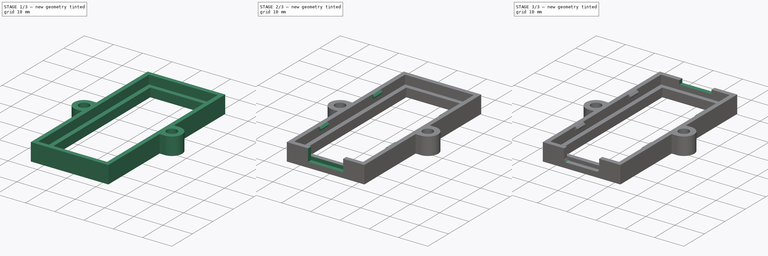
[diagram: build sequence overview — one tinted view per stage of 3, left to right]
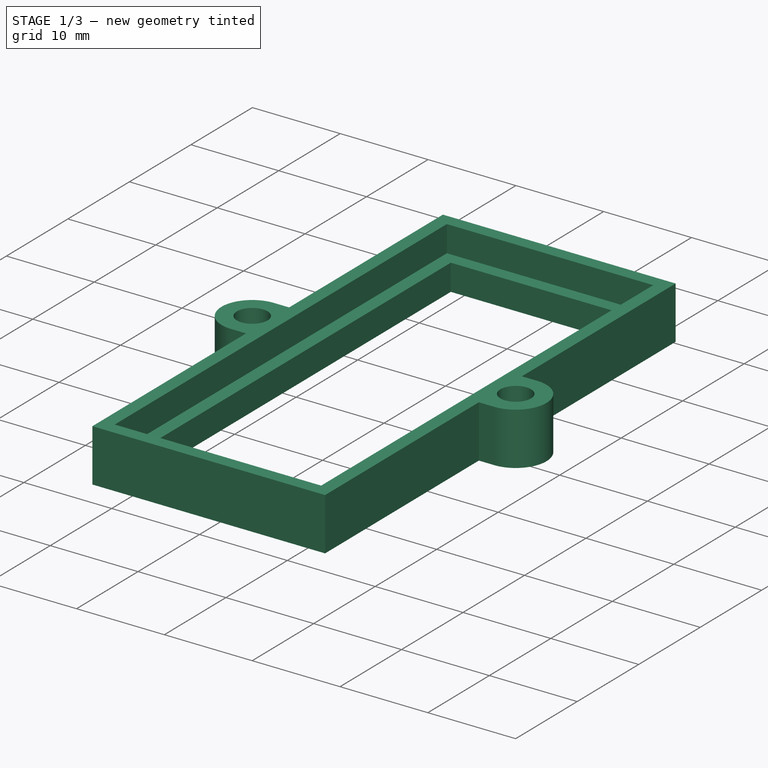
[diagram: stage 1 of 3 — iso view after this stage's code; geometry added in this stage tinted green]
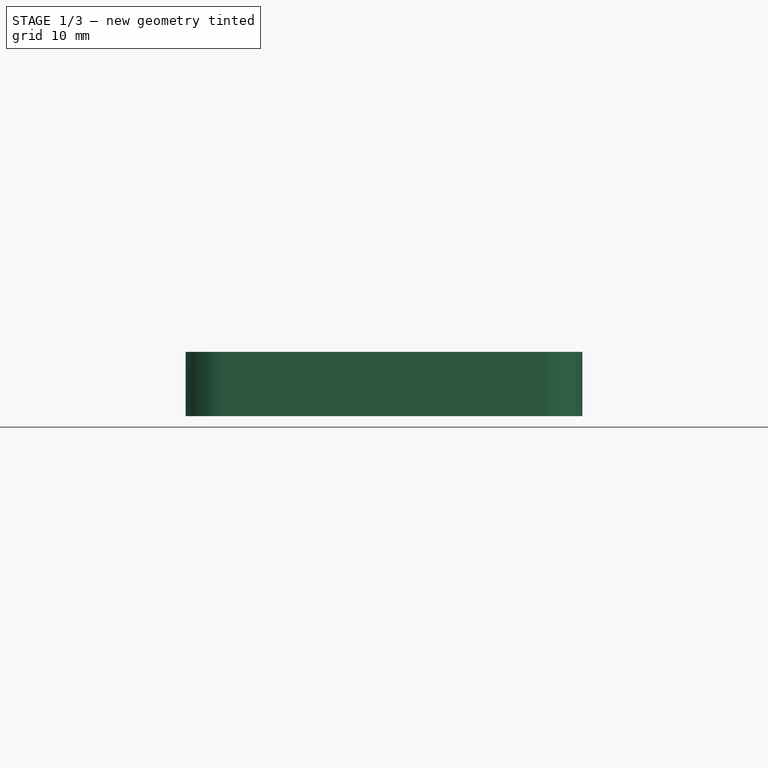
[diagram: stage 1 of 3 — front view after this stage's code; geometry added in this stage tinted green]
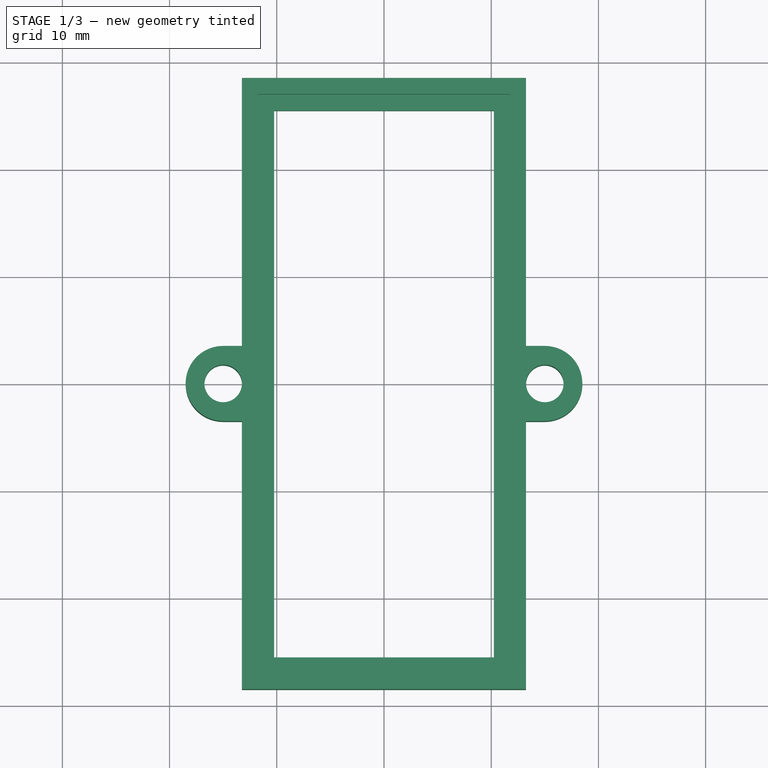
[diagram: stage 1 of 3 — top view after this stage's code; geometry added in this stage tinted green]
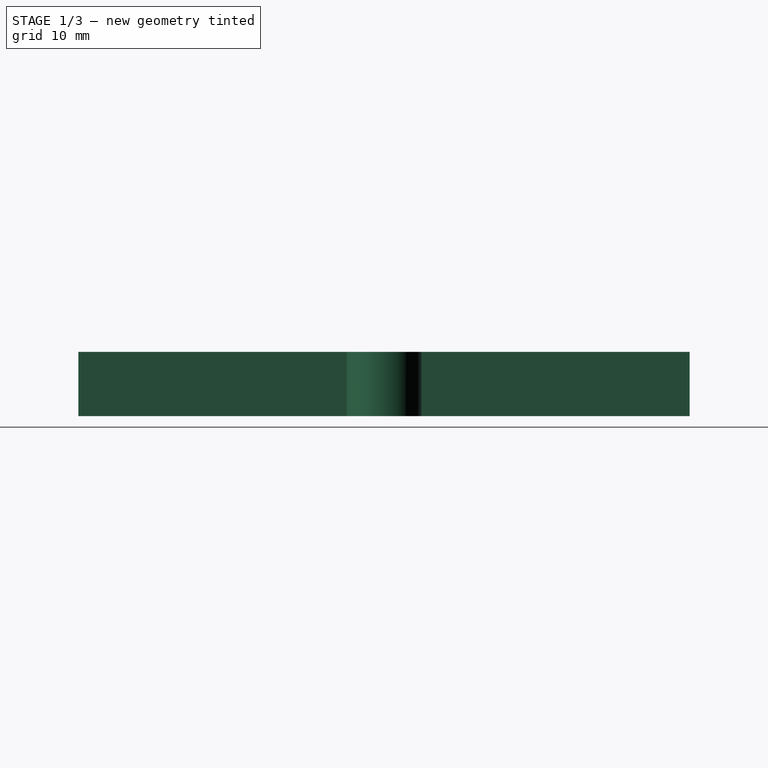
[diagram: stage 1 of 3 — right view after this stage's code; geometry added in this stage tinted green]
FCSTD DOCUMENT  (FreeCAD 0.17R13541 (Git))
Label: Bluepill_holder
License: All rights reserved
LicenseURL: http://en.wikipedia.org/wiki/All_rights_reserved
objects: Sketcher::SketchObject×5, PartDesign::Pocket×3, PartDesign::Pad×2, PartDesign::Chamfer×1, PartDesign::Fillet×1, PartDesign::Body×1
note: 18 computed .brp shape members not serialized (recipe doc carries the construction recipe); baked Part::Feature solids carry a one-line shape summary decoded from their .brp

FEATURE [Sketcher::SketchObject] Sketch
  MapMode = 5
  Support = -> [XY_Plane]
  sketch-geometry (18):
    g0: LineSegment StartX=-10.25 StartY=25.5 StartZ=0 EndX=10.25 EndY=25.5 EndZ=0
    g1: LineSegment StartX=10.25 StartY=25.5 StartZ=0 EndX=10.25 EndY=-25.5 EndZ=0
    g2: LineSegment StartX=10.25 StartY=-25.5 StartZ=0 EndX=-10.25 EndY=-25.5 EndZ=0
    g3: LineSegment StartX=-10.25 StartY=-25.5 StartZ=0 EndX=-10.25 EndY=25.5 EndZ=0
    g4: LineSegment StartX=-13.25 StartY=28.5 StartZ=0 EndX=13.25 EndY=28.5 EndZ=0
    g5: LineSegment StartX=13.25 StartY=28.5 StartZ=0 EndX=13.25 EndY=3.5 EndZ=0
    g6: LineSegment StartX=13.25 StartY=-28.5 StartZ=0 EndX=-13.25 EndY=-28.5 EndZ=0
    g7: LineSegment StartX=-13.25 StartY=-28.5 StartZ=0 EndX=-13.25 EndY=-3.5 EndZ=0
    g8: Circle CenterX=-15 CenterY=0 CenterZ=0 NormalX=0 NormalY=0 NormalZ=1 AngleXU=0 Radius=1.75
    g9: Circle CenterX=15 CenterY=0 CenterZ=0 NormalX=0 NormalY=0 NormalZ=1 AngleXU=0 Radius=1.75
    g10: LineSegment StartX=-13.25 StartY=3.5 StartZ=0 EndX=-15 EndY=3.5 EndZ=0
    g11: LineSegment StartX=-15 StartY=-3.5 StartZ=0 EndX=-13.25 EndY=-3.5 EndZ=0
    g12: LineSegment StartX=13.25 StartY=-3.5 StartZ=0 EndX=15 EndY=-3.5 EndZ=0
    g13: LineSegment StartX=15 StartY=3.5 StartZ=0 EndX=13.25 EndY=3.5 EndZ=0
    g14: ArcOfCircle CenterX=-15 CenterY=0 CenterZ=0 NormalX=0 NormalY=0 NormalZ=1 AngleXU=0 Radius=3.5 StartAngle=1.5708 EndAngle=4.71239
    g15: ArcOfCircle CenterX=15 CenterY=0 CenterZ=0 NormalX=0 NormalY=0 NormalZ=1 AngleXU=0 Radius=3.5 StartAngle=4.71239 EndAngle=7.85398
    g16: LineSegment StartX=-13.25 StartY=3.5 StartZ=0 EndX=-13.25 EndY=28.5 EndZ=0
    g17: LineSegment StartX=13.25 StartY=-3.5 StartZ=0 EndX=13.25 EndY=-28.5 EndZ=0
  constraints (48):
    c: Coincident(g0,g1)
    c: Coincident(g1,g2)
    c: Coincident(g2,g3)
    c: Coincident(g3,g0)
    c: Horizontal(g0)
    c: Horizontal(g2)
    c: Vertical(g1)
    c: Vertical(g3)
    c: Coincident(g4,g5)
    c: Coincident(g17,g6)
    c: Coincident(g6,g7)
    c: Coincident(g16,g4)
    c: Horizontal(g4)
    c: Horizontal(g6)
    c: Vertical(g5)
    c: Vertical(g7)
    c: PointOnObject(g8,g-1)
    c: PointOnObject(g9,g-1)
    c: Symmetric(g0,g2,g-1)
    c: Symmetric(g4,g6,g-1)
    c: Symmetric(g6,g17,g-2)
    c: Symmetric(g2,g1,g-2)
    c: Symmetric(g8,g9,g-2)
    c: DistanceY(g3,g3) = 51
    c: DistanceX(g2,g2) = 20.5
    c: DistanceY(g7,g16) = 57
    c: DistanceX(g4,g4) = 26.5
    c: DistanceX(g8,g9) = 30
    c: Horizontal(g10)
    c: Horizontal(g11)
    c: Horizontal(g12)
    c: Horizontal(g13)
    c: Coincident(g14,g8)
    c: Coincident(g15,g9)
    c: Equal(g8,g9)
    c: Equal(g14,g15)
    c: Radius(g8) = 1.75
    c: Tangent(g14,g11) = -1.5708
    c: Tangent(g14,g10) = -1.5708
    c: Tangent(g15,g13) = -1.5708
    c: Tangent(g15,g12) = -1.5708
    c: Radius(g14) = 3.5
    c: Coincident(g7,g11)
    c: Coincident(g16,g10)
    c: Tangent(g7,g16)
    c: Coincident(g5,g13)
    c: Coincident(g17,g12)
    c: Tangent(g5,g17)
FEATURE [PartDesign::Pad] Pad
  Length = 6
  Length2 = 100
  Profile = -> Sketch
  Type = 0
FEATURE [Sketcher::SketchObject] Sketch001
  MapMode = 5
  Placement = pos=(0,0,6) rot=(0,0,1;0rad)
  Support = -> [Pad]
  sketch-geometry (4):
    g0: LineSegment StartX=-11.75 StartY=27 StartZ=0 EndX=11.75 EndY=27 EndZ=0
    g1: LineSegment StartX=11.75 StartY=27 StartZ=0 EndX=11.75 EndY=-27 EndZ=0
    g2: LineSegment StartX=11.75 StartY=-27 StartZ=0 EndX=-11.75 EndY=-27 EndZ=0
    g3: LineSegment StartX=-11.75 StartY=-27 StartZ=0 EndX=-11.75 EndY=27 EndZ=0
  constraints (12):
    c: Coincident(g0,g1)
    c: Coincident(g1,g2)
    c: Coincident(g2,g3)
    c: Coincident(g3,g0)
    c: Horizontal(g0)
    c: Horizontal(g2)
    c: Vertical(g1)
    c: Vertical(g3)
    c: Symmetric(g0,g2,g-1)
    c: Symmetric(g2,g1,g-2)
    c: DistanceX(g2,g2) = 23.5
    c: DistanceY(g1,g1) = 54
FEATURE [PartDesign::Pocket] Pocket
  BaseFeature = -> Pad
  Length = 3
  Length2 = 100
  Profile = -> Sketch001
  Type = 0
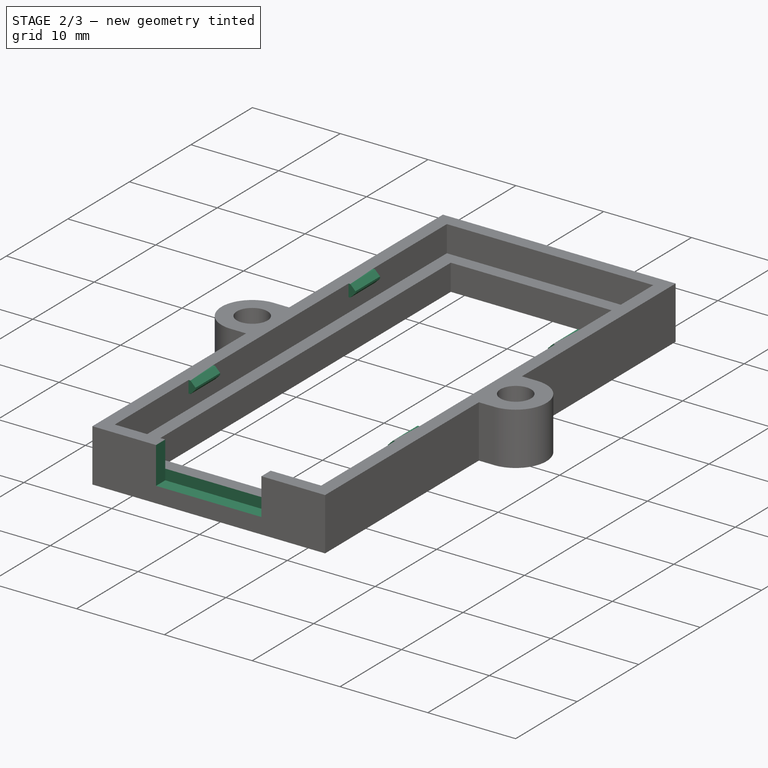
[diagram: stage 2 of 3 — iso view after this stage's code; geometry added in this stage tinted green]
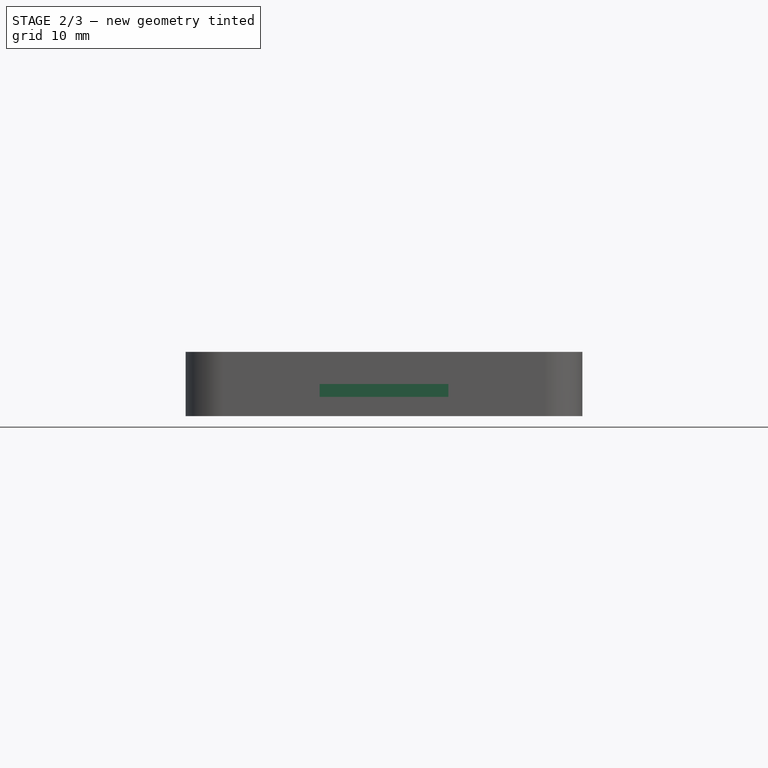
[diagram: stage 2 of 3 — front view after this stage's code; geometry added in this stage tinted green]
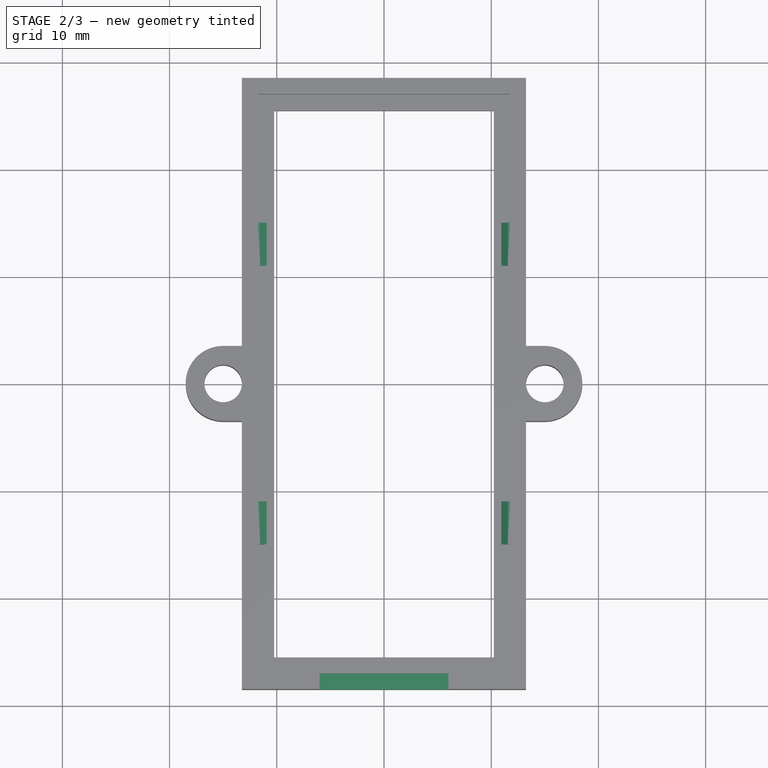
[diagram: stage 2 of 3 — top view after this stage's code; geometry added in this stage tinted green]
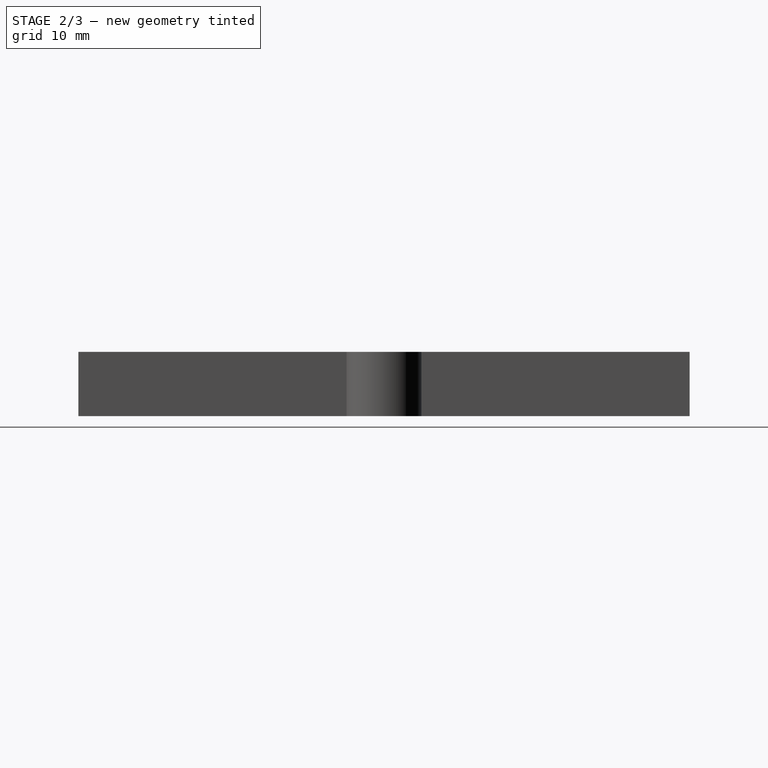
[diagram: stage 2 of 3 — right view after this stage's code; geometry added in this stage tinted green]
FEATURE [Sketcher::SketchObject] Sketch002
  MapMode = 5
  Placement = pos=(0,0,6) rot=(0,0,1;0rad)
  Support = -> [Pocket]
  sketch-geometry (16):
    g0: LineSegment StartX=-11.75 StartY=15 StartZ=0 EndX=-10.95 EndY=15 EndZ=0
    g1: LineSegment StartX=-10.95 StartY=15 StartZ=0 EndX=-10.95 EndY=11 EndZ=0
    g2: LineSegment StartX=-10.95 StartY=11 StartZ=0 EndX=-11.75 EndY=11 EndZ=0
    g3: LineSegment StartX=-11.75 StartY=11 StartZ=0 EndX=-11.75 EndY=15 EndZ=0
    g4: LineSegment StartX=-11.75 StartY=-11 StartZ=0 EndX=-10.95 EndY=-11 EndZ=0
    g5: LineSegment StartX=-10.95 StartY=-11 StartZ=0 EndX=-10.95 EndY=-15 EndZ=0
    g6: LineSegment StartX=-10.95 StartY=-15 StartZ=0 EndX=-11.75 EndY=-15 EndZ=0
    g7: LineSegment StartX=-11.75 StartY=-15 StartZ=0 EndX=-11.75 EndY=-11 EndZ=0
    g8: LineSegment StartX=11.75 StartY=-11 StartZ=0 EndX=10.95 EndY=-11 EndZ=0
    g9: LineSegment StartX=10.95 StartY=-11 StartZ=0 EndX=10.95 EndY=-15 EndZ=0
    g10: LineSegment StartX=10.95 StartY=-15 StartZ=0 EndX=11.75 EndY=-15 EndZ=0
    g11: LineSegment StartX=11.75 StartY=-15 StartZ=0 EndX=11.75 EndY=-11 EndZ=0
    g12: LineSegment StartX=11.75 StartY=15 StartZ=0 EndX=10.95 EndY=15 EndZ=0
    g13: LineSegment StartX=10.95 StartY=15 StartZ=0 EndX=10.95 EndY=11 EndZ=0
    g14: LineSegment StartX=10.95 StartY=11 StartZ=0 EndX=11.75 EndY=11 EndZ=0
    g15: LineSegment StartX=11.75 StartY=11 StartZ=0 EndX=11.75 EndY=15 EndZ=0
  constraints (48):
    c: Coincident(g0,g1)
    c: Coincident(g1,g2)
    c: Coincident(g2,g3)
    c: Coincident(g3,g0)
    c: Horizontal(g0)
    c: Horizontal(g2)
    c: Vertical(g1)
    c: Vertical(g3)
    c: Coincident(g4,g5)
    c: Coincident(g5,g6)
    c: Coincident(g6,g7)
    c: Coincident(g7,g4)
    c: Horizontal(g4)
    c: Horizontal(g6)
    c: Vertical(g5)
    c: Vertical(g7)
    c: Coincident(g8,g9)
    c: Coincident(g9,g10)
    c: Coincident(g10,g11)
    c: Coincident(g11,g8)
    c: Horizontal(g8)
    c: Horizontal(g10)
    c: Vertical(g9)
    c: Vertical(g11)
    c: Coincident(g12,g13)
    c: Coincident(g13,g14)
    c: Coincident(g14,g15)
    c: Coincident(g15,g12)
    c: Horizontal(g12)
    c: Horizontal(g14)
    c: Vertical(g13)
    c: Vertical(g15)
    c: Equal(g2,g14)
    c: Equal(g14,g6)
    c: Equal(g6,g10)
    c: Equal(g5,g9)
    c: Equal(g9,g1)
    c: Equal(g1,g13)
    c: PointOnObject(g12,g0)
    c: PointOnObject(g4,g3)
    c: PointOnObject(g9,g6)
    c: PointOnObject(g8,g15)
    c: DistanceY(g7,g7) = 4
    c: DistanceX(g4,g4) = 0.8
    c: Symmetric(g0,g6,g-1)
    c: Symmetric(g0,g12,g-2)
    c: DistanceY(g6,g0) = 30
    c: DistanceX(g0,g12) = 23.5
FEATURE [PartDesign::Pad] Pad001
  BaseFeature = -> Pocket
  Length = 1.4
  Length2 = 100
  Profile = -> Sketch002
  Reversed = true
  Type = 0
FEATURE [PartDesign::Chamfer] Chamfer
  Base = -> Pad001 [Edge112,Edge94,Edge117,Edge97,Edge79,Edge101,Edge82,Edge106]
  BaseFeature = -> Pad001
  Size = 0.59
FEATURE [Sketcher::SketchObject] Sketch003
  MapMode = 5
  Placement = pos=(0,0,6) rot=(0,0,1;0rad)
  Support = -> [Chamfer]
  sketch-geometry (4):
    g0: LineSegment StartX=-6 StartY=-27 StartZ=0 EndX=6 EndY=-27 EndZ=0
    g1: LineSegment StartX=6 StartY=-27 StartZ=0 EndX=6 EndY=-29 EndZ=0
    g2: LineSegment StartX=6 StartY=-29 StartZ=0 EndX=-6 EndY=-29 EndZ=0
    g3: LineSegment StartX=-6 StartY=-29 StartZ=0 EndX=-6 EndY=-27 EndZ=0
  constraints (12):
    c: Coincident(g0,g1)
    c: Coincident(g1,g2)
    c: Coincident(g2,g3)
    c: Coincident(g3,g0)
    c: Horizontal(g0)
    c: Horizontal(g2)
    c: Vertical(g1)
    c: Vertical(g3)
    c: Symmetric(g0,g0,g-2)
    c: DistanceX(g2,g2) = 12
    c: DistanceY(g3,g3) = 2
    c: DistanceY(g0) = -27
FEATURE [PartDesign::Pocket] Pocket001
  BaseFeature = -> Chamfer
  Length = 4.2
  Length2 = 100
  Profile = -> Sketch003
  Type = 0
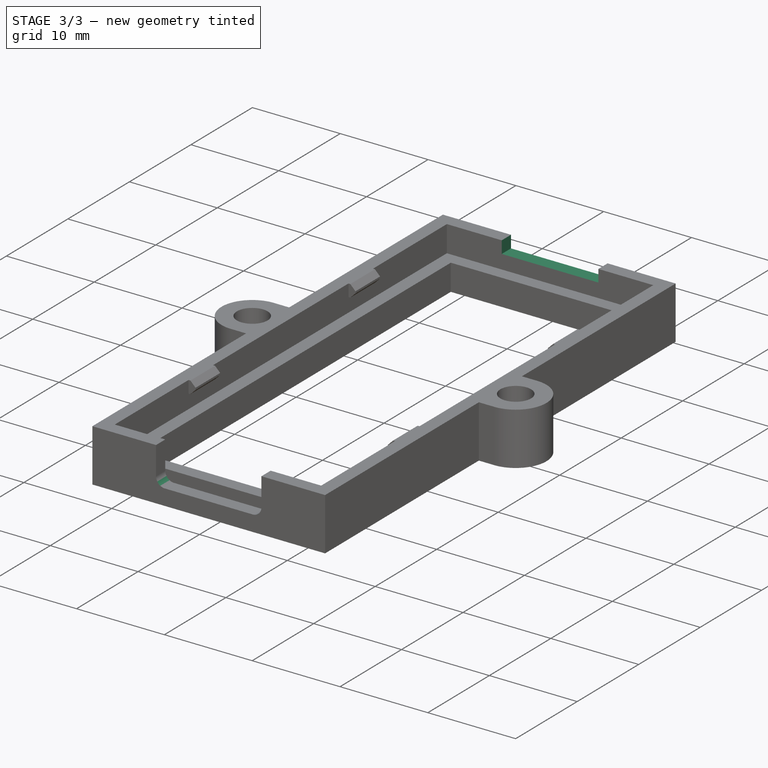
[diagram: stage 3 of 3 — iso view after this stage's code; geometry added in this stage tinted green]
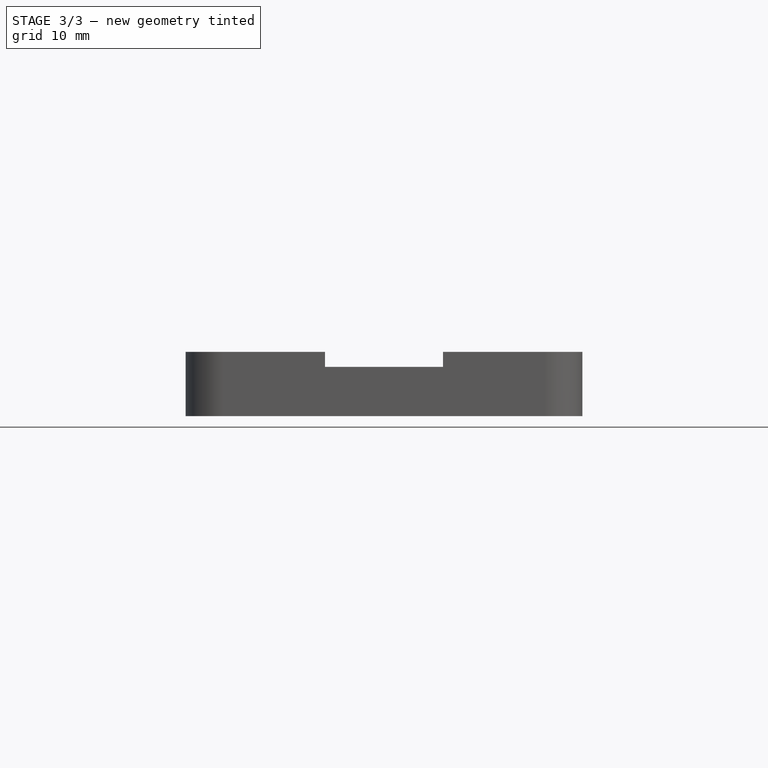
[diagram: stage 3 of 3 — front view after this stage's code; geometry added in this stage tinted green]
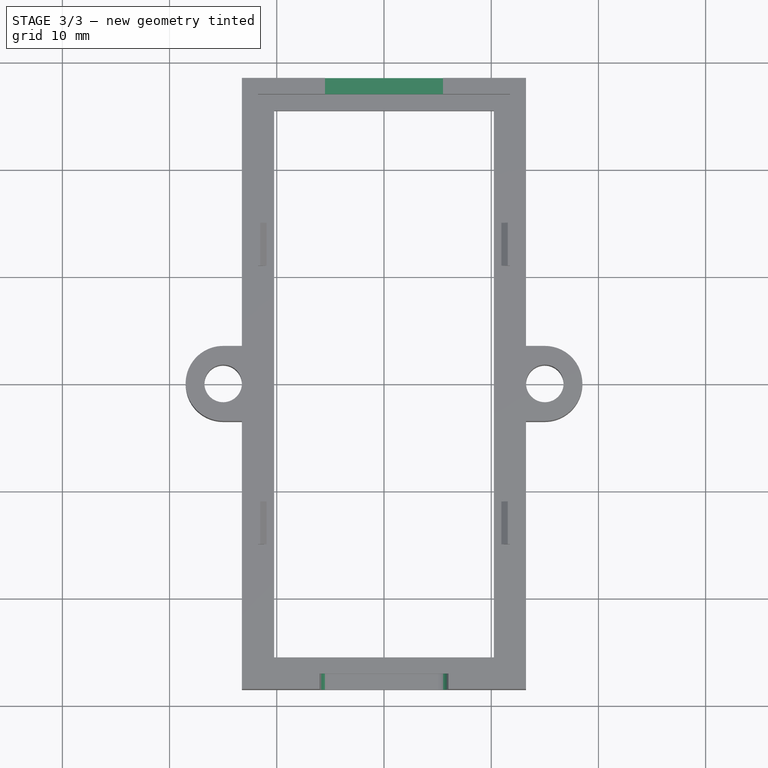
[diagram: stage 3 of 3 — top view after this stage's code; geometry added in this stage tinted green]
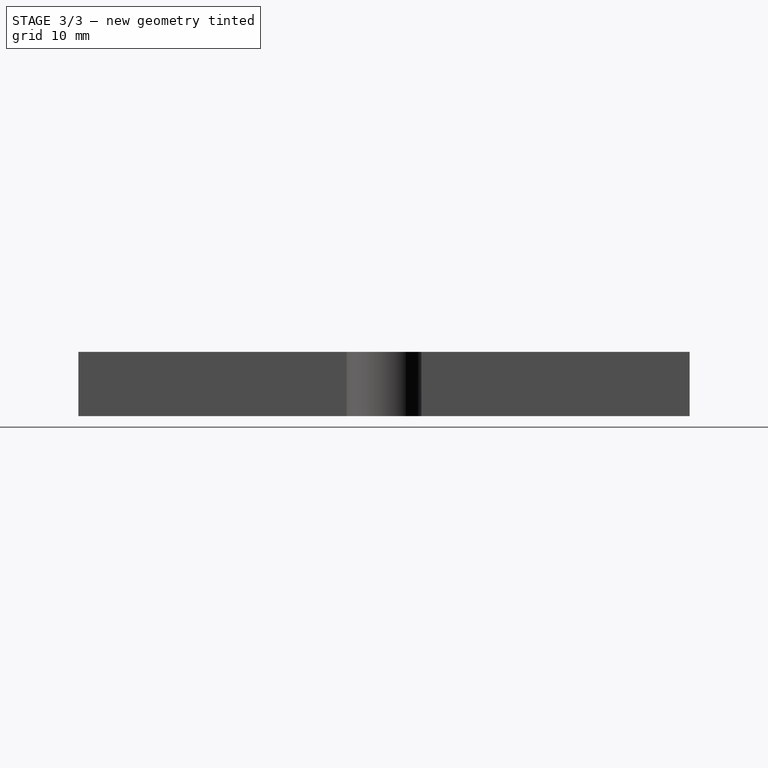
[diagram: stage 3 of 3 — right view after this stage's code; geometry added in this stage tinted green]
FEATURE [Sketcher::SketchObject] Sketch004
  MapMode = 5
  Placement = pos=(0,0,6) rot=(0,0,1;0rad)
  Support = -> [Pocket001]
  sketch-geometry (4):
    g0: LineSegment StartX=-5.5 StartY=29 StartZ=0 EndX=5.5 EndY=29 EndZ=0
    g1: LineSegment StartX=5.5 StartY=29 StartZ=0 EndX=5.5 EndY=27 EndZ=0
    g2: LineSegment StartX=5.5 StartY=27 StartZ=0 EndX=-5.5 EndY=27 EndZ=0
    g3: LineSegment StartX=-5.5 StartY=27 StartZ=0 EndX=-5.5 EndY=29 EndZ=0
  constraints (12):
    c: Coincident(g0,g1)
    c: Coincident(g1,g2)
    c: Coincident(g2,g3)
    c: Coincident(g3,g0)
    c: Horizontal(g0)
    c: Horizontal(g2)
    c: Vertical(g1)
    c: Vertical(g3)
    c: DistanceY(g3,g3) = 2
    c: DistanceX(g0,g0) = 11
    c: DistanceX(g2) = -5.5
    c: DistanceY(g2) = 27
FEATURE [PartDesign::Pocket] Pocket002
  BaseFeature = -> Pocket001
  Length = 1.4
  Length2 = 100
  Profile = -> Sketch004
  Type = 0
FEATURE [PartDesign::Fillet] Fillet
  Base = -> Pocket002 [Edge119,Edge55]
  BaseFeature = -> Pocket002
  Radius = 1
FEATURE [PartDesign::Body] Body
  Group = -> [Sketch,Pad,Sketch001,Pocket,Sketch002,Pad001,Chamfer,Sketch003,Pocket001,Sketch004,Pocket002,Fillet]
  Origin = -> Origin
  Tip = -> Fillet
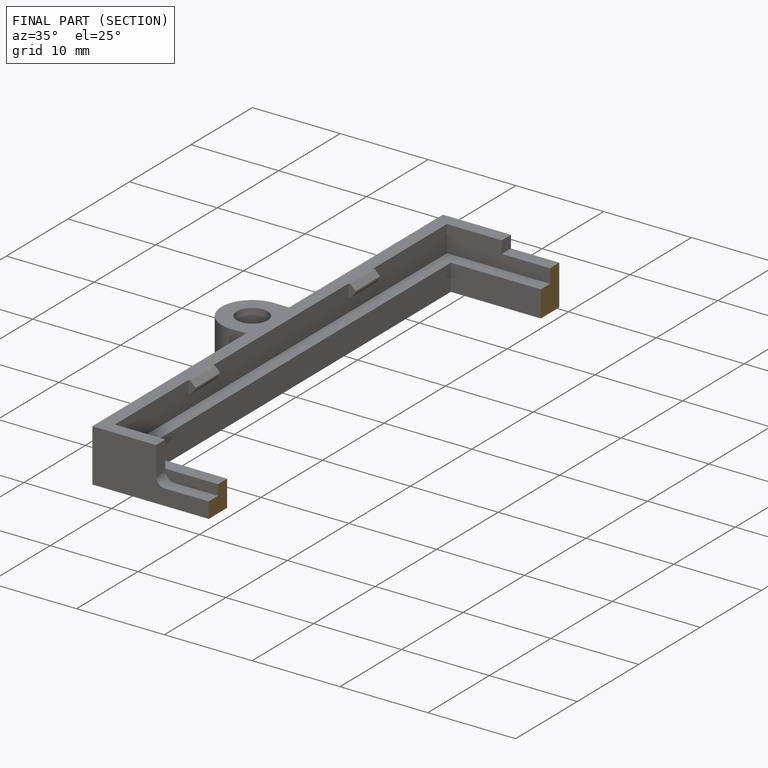
[diagram: finished part — half-section view (interior)]
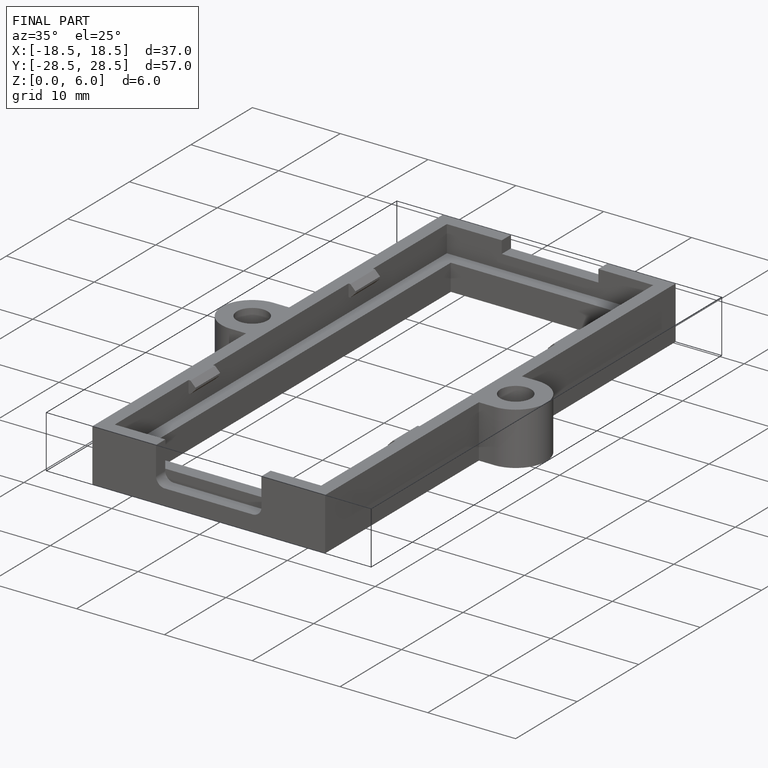
[diagram: finished part — iso view with bounding-box wireframe]
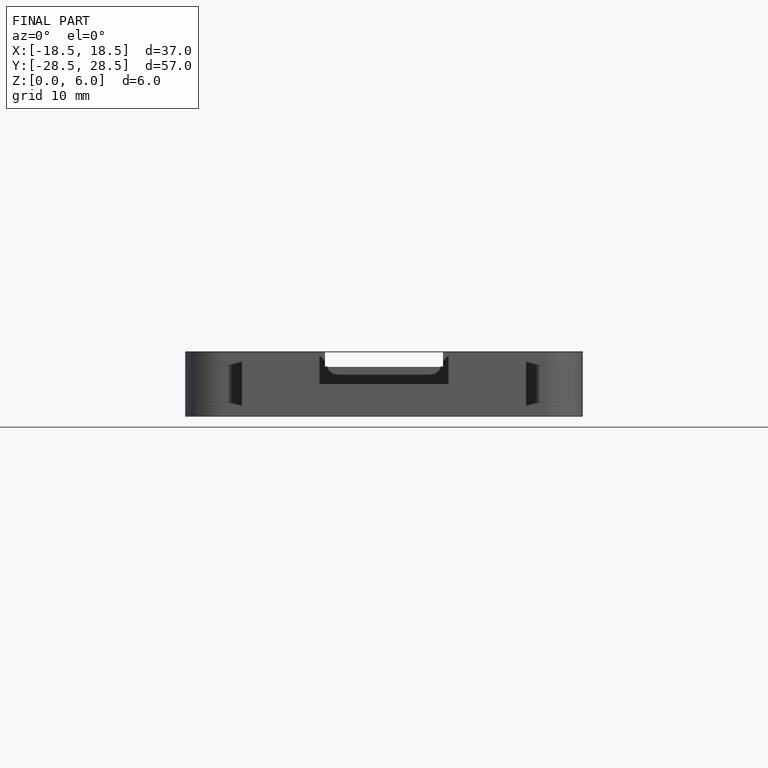
[diagram: finished part — front view with bounding-box wireframe]
